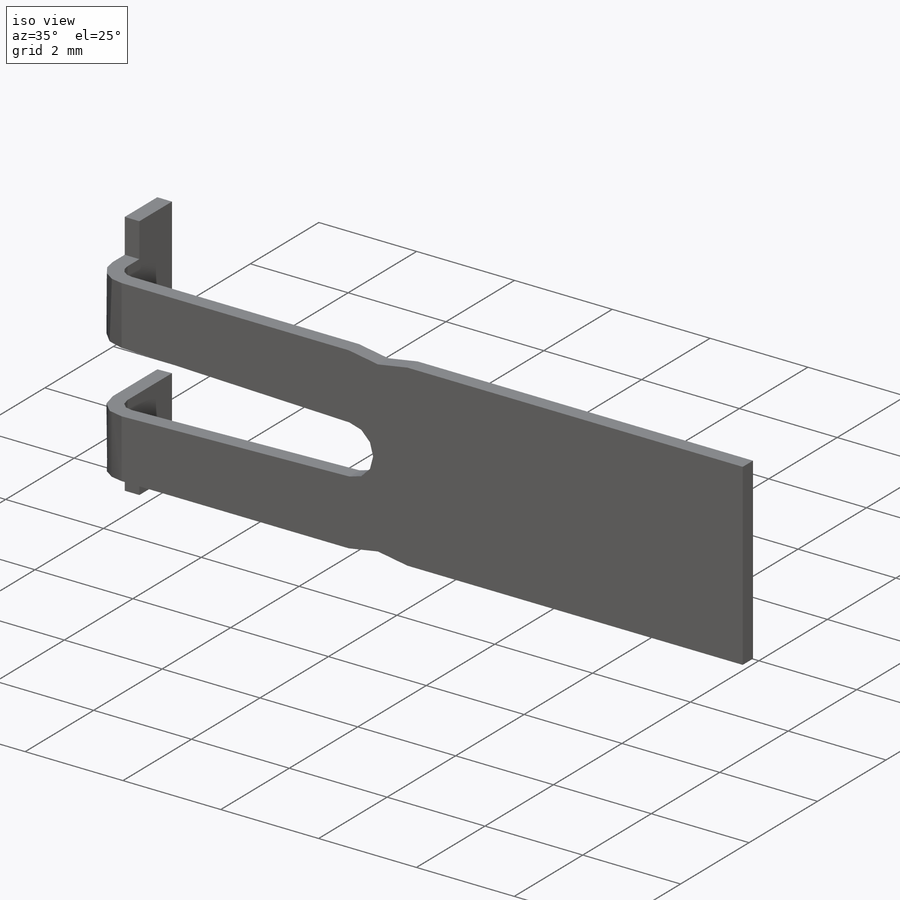
[diagram: iso view]
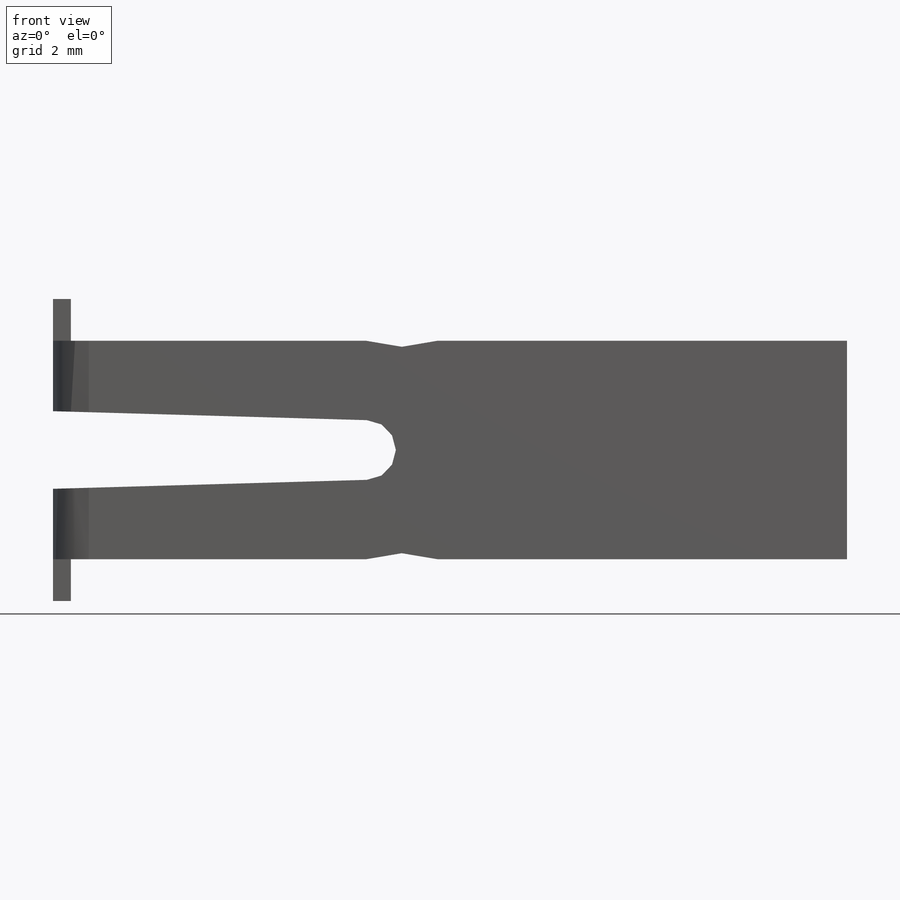
[diagram: front view]
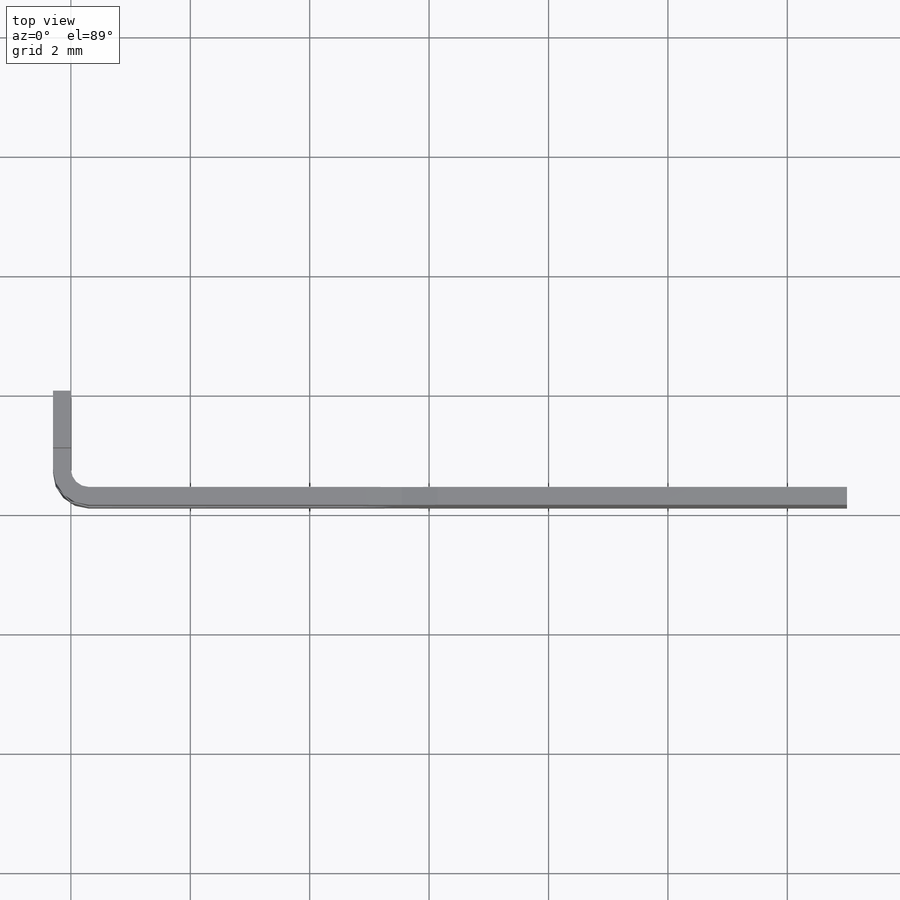
[diagram: top view]
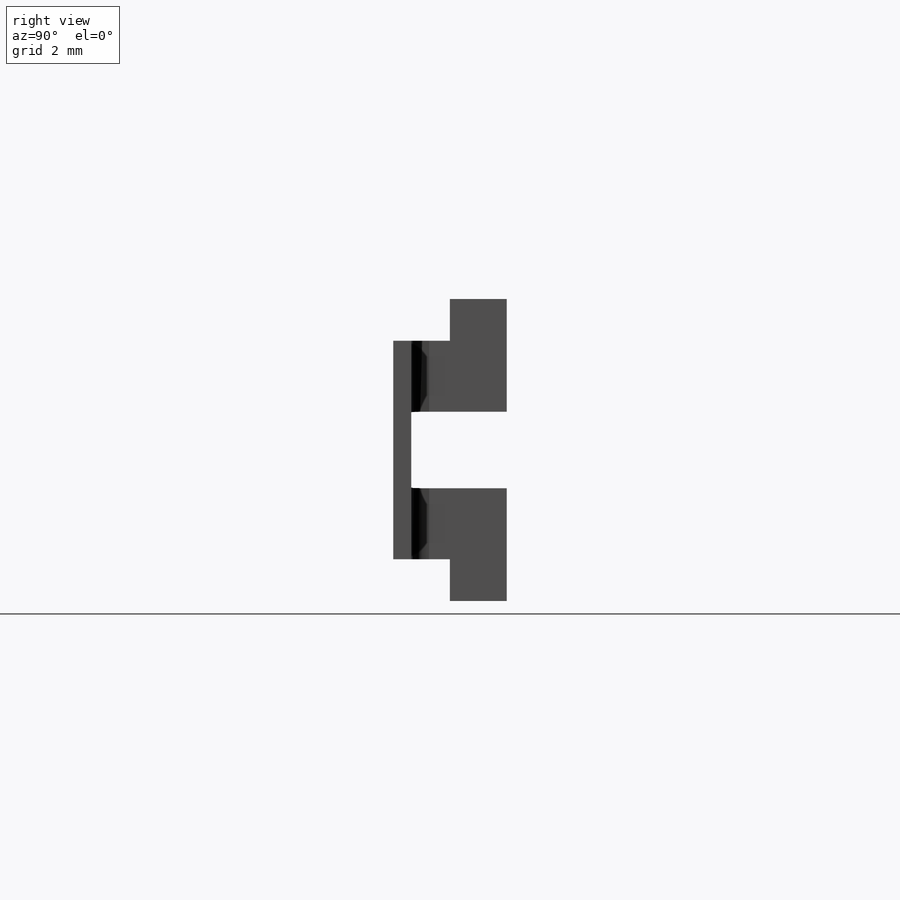
[diagram: right view]
SOLIDWORKS PART (.sldprt)
format: sldprt  version: not decoded by parser v0  size: 160,768 bytes
history: native  units: mm
features: sketch x4, plane x3, mirror x2, material x1, cut_extrude x1, extrude x1 + 1 further entry (+10 scaffold rows collapsed)
feature tree (23):
  scaffold x10  (default folders/planes/origin — collapsed)
  material  "Matériau <non spécifié>"
  "Corps de surface"
  plane  "Face"
  plane  "Dessus"
  plane  "Droite"
  sketch  "Esquisse1"  dims[c1.D3=0.3mm c1.D1=1.6mm c1.D2=13.0mm c2.D1=3.66mm c2.D5=0.3mm c2.D6=10.0mm c2.D7=5.0mm]
  sketch  "Esquisse2"  dims[c1.D2=~0.135329mm c1.D3=0.5mm c1.D1=1.3mm c2.D2=~7.556693mm]
  cut_extrude  "Enlèv. mat.-Extru.1"  [1 undecoded]
  sketch  "Esquisse3"  dims[D1=~0.952233mm]
  extrude  "Boss.-Extru.1"  Depth=0.7mm
  mirror  "Symétrie1"
  sketch  "Esquisse4"  dims[D1=1.2mm]
  mirror  "Enlèv. mat.-Extru.2"
decode coverage: 5 of 8 modeling features carry decoded parameters; 1 rows unclassified (native names shown)
note: ~ marks probable driven/reference dimensions
note: 1 parameter value undecoded
note: suppression state not decoded; provenance and decode notes live in map.json
